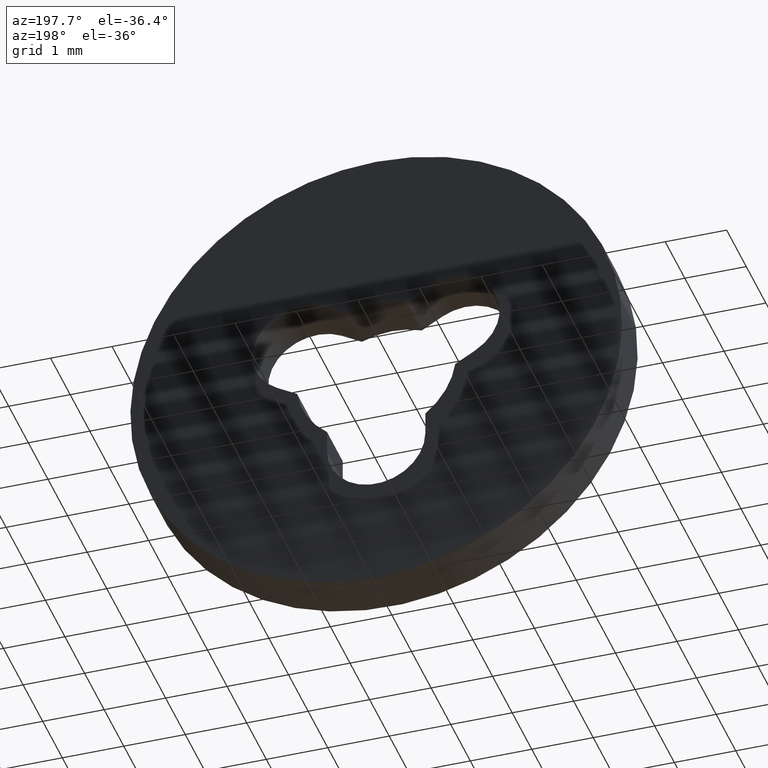
[diagram: clean part render]
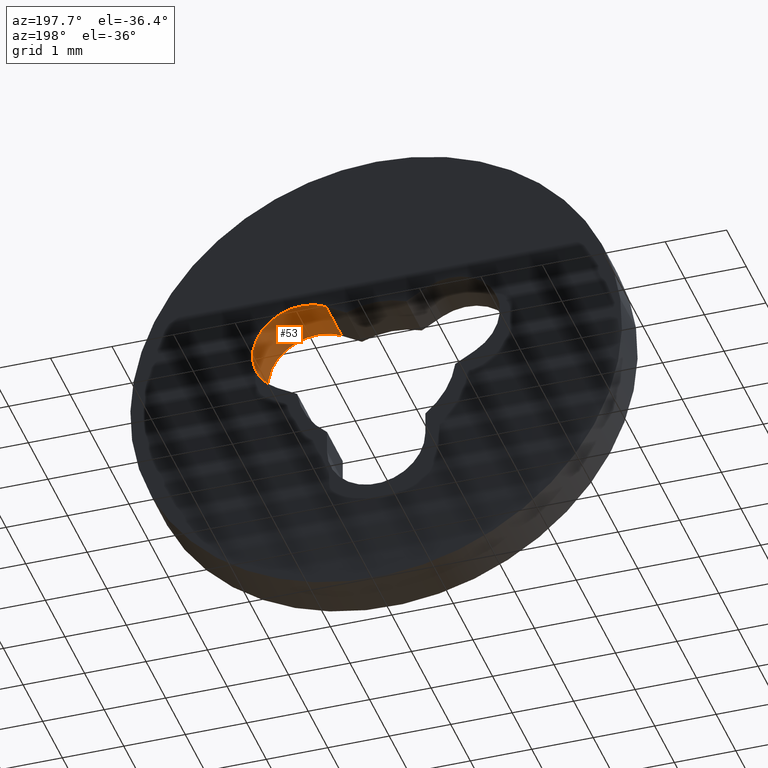
[diagram: same view with one face highlighted and labeled with its STEP entity id]
A machine part, auxiliary view. The second image highlights one B-rep face of the part: STEP entity #53.
In plain terms, the highlighted cylindrical surface (partial cylindrical patch) has radius 0.8 mm, axis along (-0, -1, -0).
Its self-contained STEP definition (entity closure, byte-faithful):
#53=ADVANCED_FACE('',(#189),#188,.F.);
#188=CYLINDRICAL_SURFACE('',#288,8.00034399239E-01);
#189=FACE_OUTER_BOUND('',#289,.T.);
#285=CARTESIAN_POINT('',(1.21244490187E+00,-2.05000000000E-02,6.99985964243E-01));
#286=DIRECTION('',(-2.03910230877E-17,-1.00000000000E+00,-1.24931208245E-17));
#287=DIRECTION('',(-8.70399834658E-01,2.38992754055E-17,-4.92345537023E-01));
#288=AXIS2_PLACEMENT_3D('',#285,#286,#287);
#289=EDGE_LOOP('',(#374,#375,#376,#377));
#374=ORIENTED_EDGE('',*,*,#406,.T.);
#375=ORIENTED_EDGE('',*,*,#429,.F.);
#376=ORIENTED_EDGE('',*,*,#392,.F.);
#377=ORIENTED_EDGE('',*,*,#418,.T.);
#392=EDGE_CURVE('',#454,#461,#462,.T.);
#406=EDGE_CURVE('',#558,#559,#560,.T.);
#418=EDGE_CURVE('',#454,#558,#642,.T.);
#429=EDGE_CURVE('',#461,#559,#708,.T.);
#454=VERTEX_POINT('',#742);
#461=VERTEX_POINT('',#746);
#462=CIRCLE('',#750,8.00034399239E-01);
#558=VERTEX_POINT('',#810);
#559=VERTEX_POINT('',#811);
#560=CIRCLE('',#815,8.00034399239E-01);
#642=LINE('',#864,#865);
#708=LINE('',#897,#898);
#742=CARTESIAN_POINT('',(1.61239999087E+00,8.00000000000E-01,7.09999473246E-03));
#746=CARTESIAN_POINT('',(8.16907166695E-01,8.00000000000E-01,1.39540306212E+00));
#747=CARTESIAN_POINT('',(1.21244490187E+00,8.00000000000E-01,6.99985964243E-01));
#748=DIRECTION('',(1.76825861046E-14,-1.00000000000E+00,2.68710301184E-14));
#749=DIRECTION('',(-4.99922365069E-01,1.44322787459E-14,8.66070221693E-01));
#750=AXIS2_PLACEMENT_3D('',#747,#748,#749);
#810=CARTESIAN_POINT('',(1.61239999087E+00,0.00000000000E+00,7.09999473246E-03));
#811=CARTESIAN_POINT('',(8.16907166695E-01,0.00000000000E+00,1.39540306212E+00));
#812=CARTESIAN_POINT('',(1.21244490187E+00,0.00000000000E+00,6.99985964243E-01));
#813=DIRECTION('',(0.00000000000E+00,-1.00000000000E+00,0.00000000000E+00));
#814=DIRECTION('',(-4.99922365069E-01,-0.00000000000E+00,8.66070221693E-01));
#815=AXIS2_PLACEMENT_3D('',#812,#813,#814);
#864=CARTESIAN_POINT('',(1.61239999087E+00,8.00000000000E-01,7.09999473246E-03));
#865=VECTOR('',#866,8.00000000000E-01);
#866=DIRECTION('',(0.00000000000E+00,-1.00000000000E+00,0.00000000000E+00));
#897=CARTESIAN_POINT('',(8.16907166695E-01,8.00000000000E-01,1.39540306212E+00));
#898=VECTOR('',#899,8.00000000000E-01);
#899=DIRECTION('',(0.00000000000E+00,-1.00000000000E+00,0.00000000000E+00));